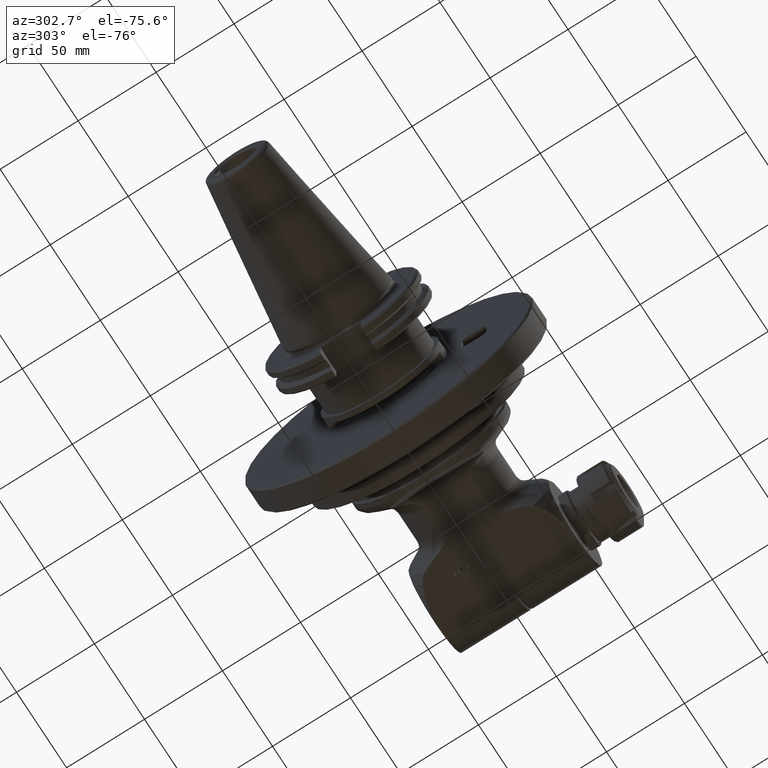
[diagram: clean part render]
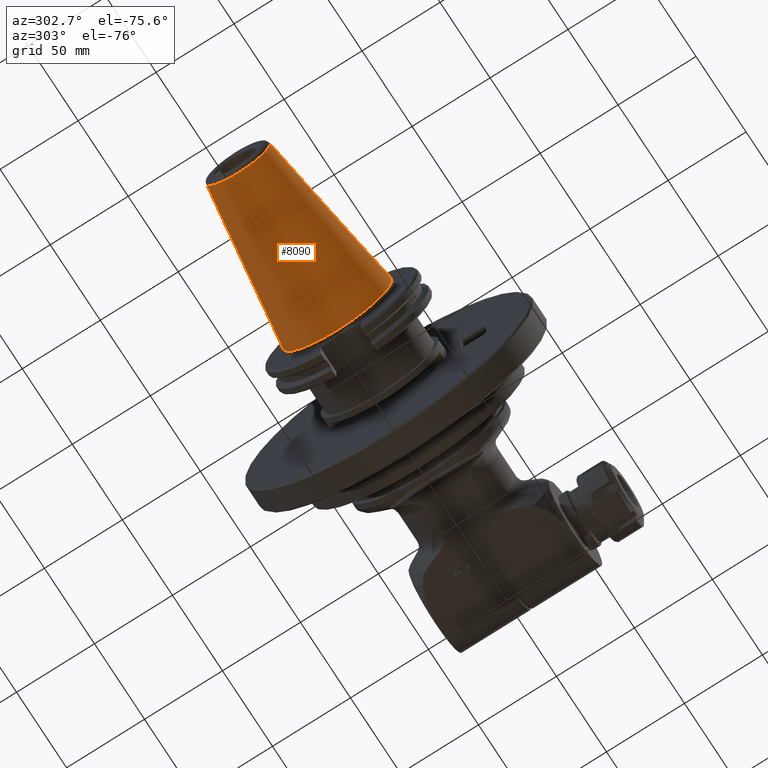
[diagram: same view with one face highlighted and labeled with its STEP entity id]
A machine part, auxiliary view. The second image highlights one B-rep face of the part: STEP entity #8090.
In plain terms, the highlighted conical surface has half-angle 8.297 deg.
Its self-contained STEP definition (entity closure, byte-faithful):
#156=CONICAL_SURFACE('',#9001,27.67265681028,0.144812411498922);
#916=CIRCLE('',#8999,34.925);
#917=CIRCLE('',#9000,34.925);
#918=CIRCLE('',#9002,20.42031362057);
#919=CIRCLE('',#9003,20.42031362057);
#1402=FACE_OUTER_BOUND('',#1959,.T.);
#1959=EDGE_LOOP('',(#7225,#7226,#7227,#7228,#7229,#7230));
#2539=LINE('',#14500,#3105);
#3105=VECTOR('',#11240,27.67265681028);
#3854=VERTEX_POINT('',#14493);
#3855=VERTEX_POINT('',#14494);
#3856=VERTEX_POINT('',#14499);
#3857=VERTEX_POINT('',#14501);
#4988=EDGE_CURVE('',#3854,#3855,#916,.T.);
#4990=EDGE_CURVE('',#3855,#3854,#917,.T.);
#4991=EDGE_CURVE('',#3854,#3856,#2539,.T.);
#4992=EDGE_CURVE('',#3857,#3856,#918,.T.);
#4993=EDGE_CURVE('',#3856,#3857,#919,.T.);
#7225=ORIENTED_EDGE('',*,*,#4988,.F.);
#7226=ORIENTED_EDGE('',*,*,#4991,.T.);
#7227=ORIENTED_EDGE('',*,*,#4992,.F.);
#7228=ORIENTED_EDGE('',*,*,#4993,.F.);
#7229=ORIENTED_EDGE('',*,*,#4991,.F.);
#7230=ORIENTED_EDGE('',*,*,#4990,.F.);
#8090=ADVANCED_FACE('',(#1402),#156,.T.);
#8999=AXIS2_PLACEMENT_3D('',#14495,#11233,#11234);
#9000=AXIS2_PLACEMENT_3D('',#14497,#11236,#11237);
#9001=AXIS2_PLACEMENT_3D('',#14498,#11238,#11239);
#9002=AXIS2_PLACEMENT_3D('',#14502,#11241,#11242);
#9003=AXIS2_PLACEMENT_3D('',#14503,#11243,#11244);
#11233=DIRECTION('center_axis',(1.,0.,0.));
#11234=DIRECTION('ref_axis',(0.,0.,-1.));
#11236=DIRECTION('center_axis',(1.,0.,0.));
#11237=DIRECTION('ref_axis',(0.,0.,-1.));
#11238=DIRECTION('center_axis',(1.,0.,0.));
#11239=DIRECTION('ref_axis',(0.,0.,-1.));
#11240=DIRECTION('',(-0.98953299358046,1.76724869581176E-17,-0.144306807239621));
#11241=DIRECTION('center_axis',(-1.,0.,0.));
#11242=DIRECTION('ref_axis',(0.,0.,-1.));
#11243=DIRECTION('center_axis',(-1.,0.,0.));
#11244=DIRECTION('ref_axis',(0.,0.,-1.));
#14493=CARTESIAN_POINT('',(9.947598300641E-14,0.,34.925));
#14494=CARTESIAN_POINT('',(3.99194566291783E-13,-4.27707894602227E-15,-34.9250000000012));
#14495=CARTESIAN_POINT('Origin',(8.526512829121E-14,0.,0.));
#14497=CARTESIAN_POINT('Origin',(8.526512829121E-14,0.,0.));
#14498=CARTESIAN_POINT('Origin',(-49.73038350905,0.,0.));
#14499=CARTESIAN_POINT('',(-99.4607670180991,-2.50076717130085E-15,20.4203136205638));
#14500=CARTESIAN_POINT('',(-49.73038350905,-3.38892305866126E-15,27.67265681028));
#14501=CARTESIAN_POINT('',(-99.4607670181,20.42031362057,2.50076717130162E-15));
#14502=CARTESIAN_POINT('Origin',(-99.4607670181,0.,0.));
#14503=CARTESIAN_POINT('Origin',(-99.4607670181,0.,0.));